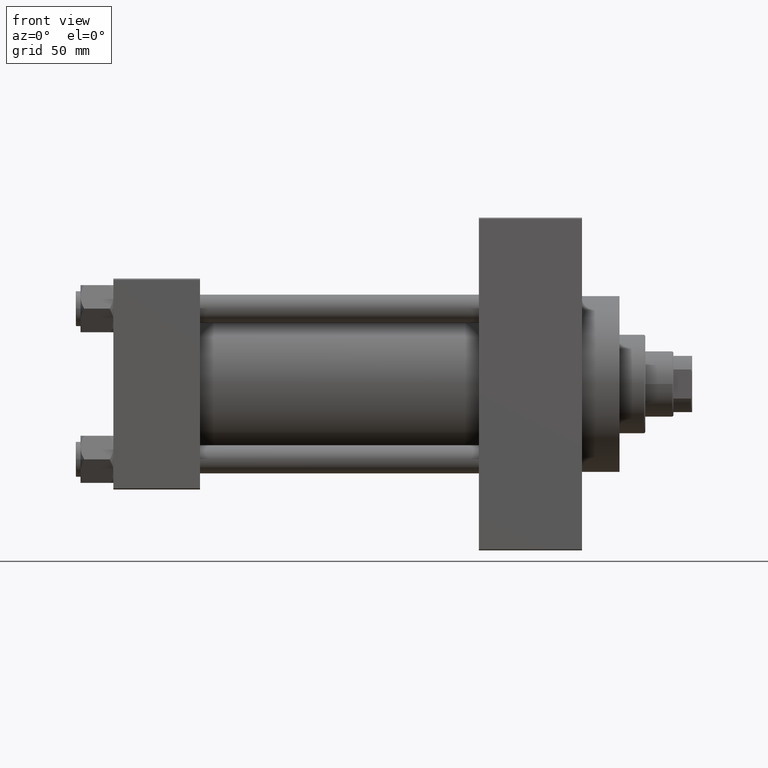
[diagram: clean part render]
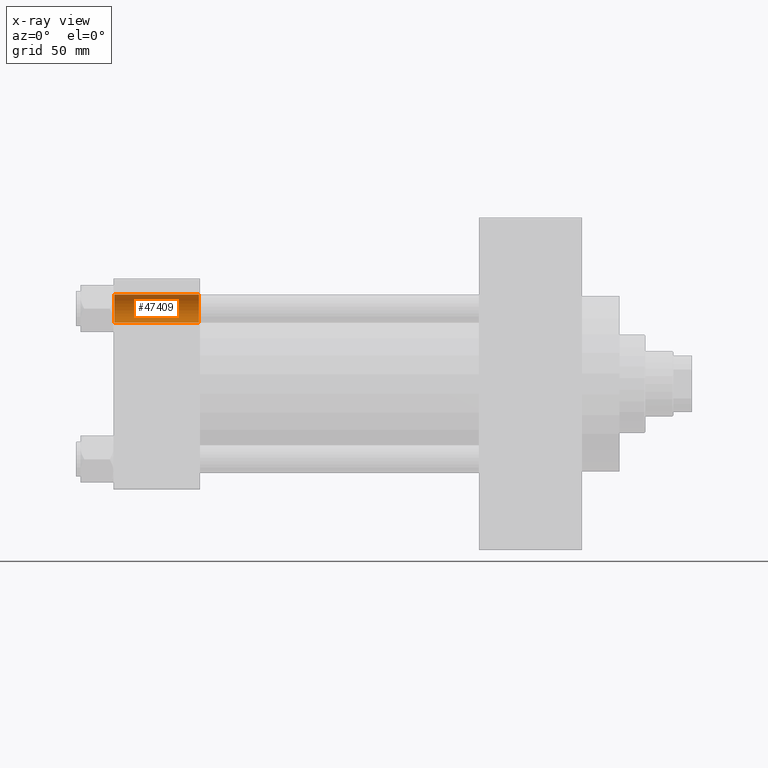
[diagram: x-ray — body ghosted, one internal face saturated and labeled with its STEP entity id]
A machine part, front view, then the same camera in x-ray: the body is ghosted and one INTERNAL B-rep face — a face not visible from any outside direction — is saturated and labeled: STEP entity #47409.
In plain terms, the highlighted cylindrical surface (edge-blend (fillet) strip) has radius 6 mm, axis along (-1, -0, -0).
Its self-contained STEP definition (entity closure, byte-faithful):
#534 = VERTEX_POINT ( 'NONE', #24891 ) ;
#885 = ORIENTED_EDGE ( 'NONE', *, *, #15977, .F. ) ;
#2941 = DIRECTION ( 'NONE',  ( 1.000000000000000000, -0.000000000000000000, -0.000000000000000000 ) ) ;
#3277 = LINE ( 'NONE', #10008, #9919 ) ;
#7970 = ORIENTED_EDGE ( 'NONE', *, *, #19239, .T. ) ;
#8978 = ORIENTED_EDGE ( 'NONE', *, *, #46077, .T. ) ;
#9225 = CARTESIAN_POINT ( 'NONE',  ( 0.4999999999999726885, 32.14999999999999147, 32.15000000000000568 ) ) ;
#9828 = AXIS2_PLACEMENT_3D ( 'NONE', #9225, #34885, #46774 ) ;
#9919 = VECTOR ( 'NONE', #43553, 1000.000000000000000 ) ;
#10008 = CARTESIAN_POINT ( 'NONE',  ( 37.00000000000000711, 32.14999999999999147, 38.15000000000000568 ) ) ;
#12932 = DIRECTION ( 'NONE',  ( 0.000000000000000000, 0.000000000000000000, 1.000000000000000000 ) ) ;
#13171 = VERTEX_POINT ( 'NONE', #32775 ) ;
#13174 = CYLINDRICAL_SURFACE ( 'NONE', #29069, 5.999999999999998224 ) ;
#13282 = CARTESIAN_POINT ( 'NONE',  ( 36.49999999999993605, 32.14999999999999147, 32.15000000000000568 ) ) ;
#13998 = VERTEX_POINT ( 'NONE', #34175 ) ;
#15977 = EDGE_CURVE ( 'NONE', #33862, #13998, #39717, .T. ) ;
#17590 = DIRECTION ( 'NONE',  ( 0.000000000000000000, 0.000000000000000000, 1.000000000000000000 ) ) ;
#18174 = DIRECTION ( 'NONE',  ( -1.000000000000000000, -0.000000000000000000, -0.000000000000000000 ) ) ;
#19239 = EDGE_CURVE ( 'NONE', #33862, #534, #20295, .T. ) ;
#20295 = CIRCLE ( 'NONE', #34076, 5.999999999999998224 ) ;
#24288 = EDGE_CURVE ( 'NONE', #534, #13171, #3277, .T. ) ;
#24891 = CARTESIAN_POINT ( 'NONE',  ( 36.49999999999993605, 32.14999999999999147, 38.15000000000000568 ) ) ;
#25121 = CARTESIAN_POINT ( 'NONE',  ( 37.00000000000000711, 32.14999999999999147, 26.15000000000000924 ) ) ;
#27797 = CARTESIAN_POINT ( 'NONE',  ( 37.00000000000000711, 32.14999999999999147, 32.15000000000000568 ) ) ;
#29069 = AXIS2_PLACEMENT_3D ( 'NONE', #27797, #34994, #12932 ) ;
#31038 = VECTOR ( 'NONE', #18174, 1000.000000000000000 ) ;
#32775 = CARTESIAN_POINT ( 'NONE',  ( 0.4999999999999726885, 32.14999999999999147, 38.15000000000000568 ) ) ;
#33862 = VERTEX_POINT ( 'NONE', #41498 ) ;
#34076 = AXIS2_PLACEMENT_3D ( 'NONE', #13282, #2941, #17590 ) ;
#34175 = CARTESIAN_POINT ( 'NONE',  ( 0.4999999999999726885, 32.14999999999999147, 26.15000000000000924 ) ) ;
#34885 = DIRECTION ( 'NONE',  ( -1.000000000000000000, 0.000000000000000000, 0.000000000000000000 ) ) ;
#34994 = DIRECTION ( 'NONE',  ( -1.000000000000000000, -0.000000000000000000, -0.000000000000000000 ) ) ;
#35222 = EDGE_LOOP ( 'NONE', ( #885, #7970, #42197, #8978 ) ) ;
#39279 = FACE_OUTER_BOUND ( 'NONE', #35222, .T. ) ;
#39717 = LINE ( 'NONE', #25121, #31038 ) ;
#41232 = CIRCLE ( 'NONE', #9828, 5.999999999999998224 ) ;
#41498 = CARTESIAN_POINT ( 'NONE',  ( 36.49999999999993605, 32.14999999999999147, 26.15000000000000924 ) ) ;
#42197 = ORIENTED_EDGE ( 'NONE', *, *, #24288, .T. ) ;
#43553 = DIRECTION ( 'NONE',  ( -1.000000000000000000, -0.000000000000000000, -0.000000000000000000 ) ) ;
#46077 = EDGE_CURVE ( 'NONE', #13171, #13998, #41232, .T. ) ;
#46774 = DIRECTION ( 'NONE',  ( 0.000000000000000000, 0.000000000000000000, 1.000000000000000000 ) ) ;
#47409 = ADVANCED_FACE ( 'NONE', ( #39279 ), #13174, .F. ) ;